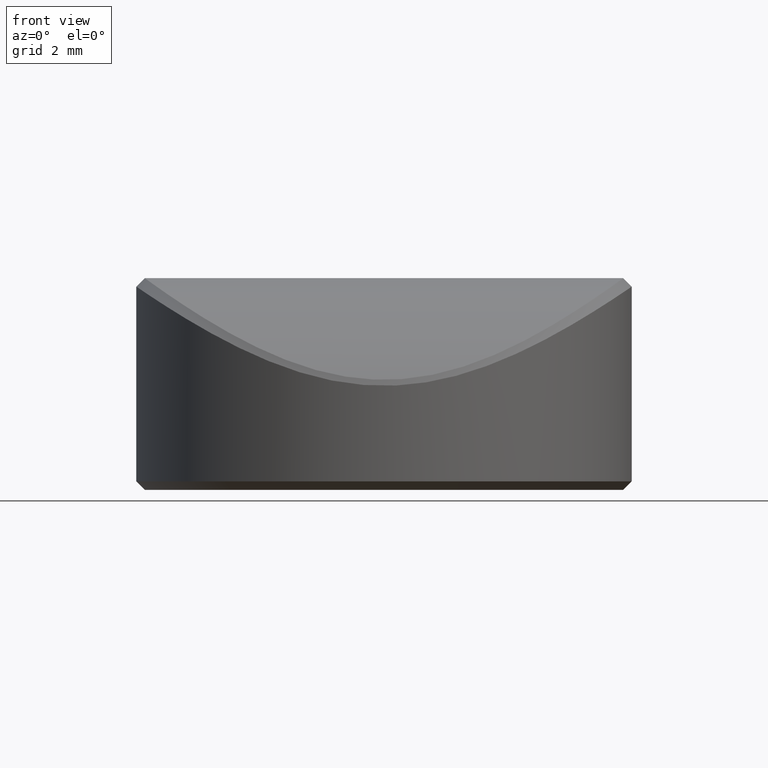
[diagram: clean part render]
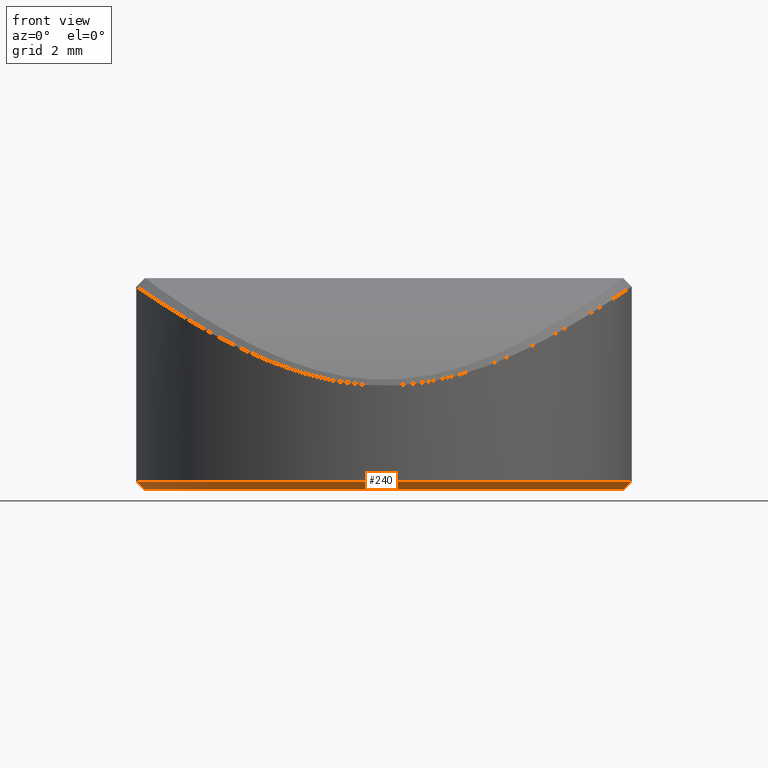
[diagram: same view with one face highlighted and labeled with its STEP entity id]
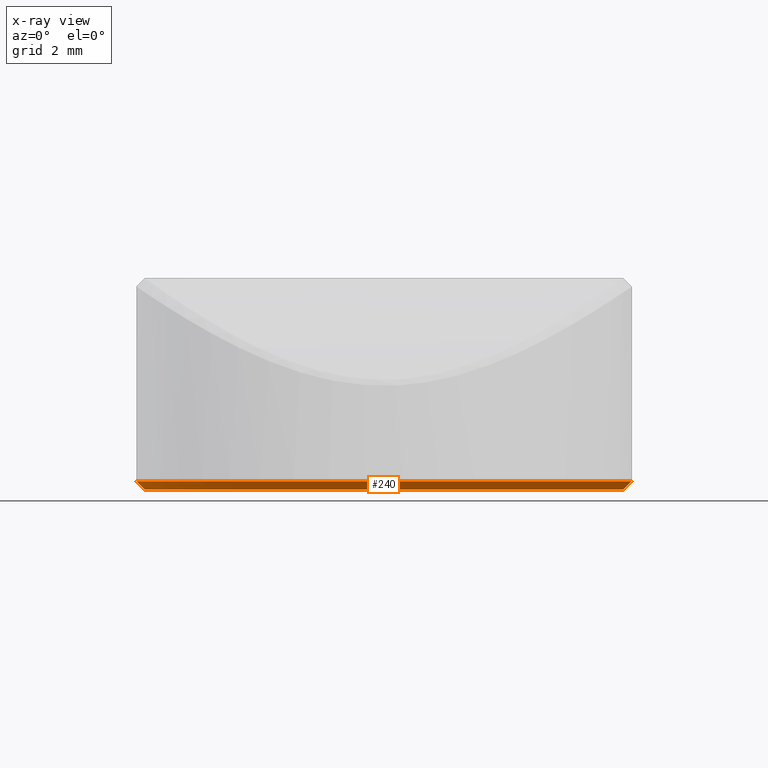
[diagram: x-ray of the same camera — body ghosted, the highlighted face saturated]
A machine part, front view. The second image highlights one B-rep face of the part: STEP entity #240.
The next image is the same camera in x-ray: the body ghosted, the highlighted face saturated — about 0% of this face is hidden behind the body in this view.
In plain terms, the highlighted conical surface has half-angle 45 deg.
Its self-contained STEP definition (entity closure, byte-faithful):
#42 = DIRECTION ( 'NONE',  ( -0.7071067811865489050, 8.659560562354951347E-17, 0.7071067811865460184 ) ) ;
#71 = DIRECTION ( 'NONE',  ( 1.000000000000000000, 0.000000000000000000, 0.000000000000000000 ) ) ;
#143 = CIRCLE ( 'NONE', #2180, 5.650000000000000355 ) ;
#204 = VERTEX_POINT ( 'NONE', #593 ) ;
#235 = DIRECTION ( 'NONE',  ( 1.000000000000000000, 0.000000000000000000, 0.000000000000000000 ) ) ;
#240 = ADVANCED_FACE ( 'NONE', ( #1721 ), #332, .T. ) ;
#332 = CONICAL_SURFACE ( 'NONE', #1255, 5.849999999999999645, 0.7853981633974503884 ) ;
#406 = CARTESIAN_POINT ( 'NONE',  ( 0.000000000000000000, 0.000000000000000000, 0.1999999999999979294 ) ) ;
#417 = EDGE_CURVE ( 'NONE', #1089, #1996, #833, .T. ) ;
#567 = AXIS2_PLACEMENT_3D ( 'NONE', #406, #582, #2069 ) ;
#582 = DIRECTION ( 'NONE',  ( -0.000000000000000000, -0.000000000000000000, 1.000000000000000000 ) ) ;
#593 = CARTESIAN_POINT ( 'NONE',  ( -5.650000000000000355, 7.041719095097280880E-16, 0.000000000000000000 ) ) ;
#628 = DIRECTION ( 'NONE',  ( -0.000000000000000000, -0.000000000000000000, 1.000000000000000000 ) ) ;
#670 = EDGE_CURVE ( 'NONE', #204, #1089, #1677, .T. ) ;
#723 = ORIENTED_EDGE ( 'NONE', *, *, #670, .F. ) ;
#833 = CIRCLE ( 'NONE', #567, 5.849999999999999645 ) ;
#872 = VECTOR ( 'NONE', #42, 1000.000000000000114 ) ;
#909 = ORIENTED_EDGE ( 'NONE', *, *, #417, .F. ) ;
#1089 = VERTEX_POINT ( 'NONE', #2044 ) ;
#1096 = CARTESIAN_POINT ( 'NONE',  ( 0.000000000000000000, 0.000000000000000000, 0.000000000000000000 ) ) ;
#1243 = DIRECTION ( 'NONE',  ( 0.7071067811865489050, 0.000000000000000000, 0.7071067811865460184 ) ) ;
#1255 = AXIS2_PLACEMENT_3D ( 'NONE', #1335, #628, #71 ) ;
#1257 = CARTESIAN_POINT ( 'NONE',  ( 5.849999999999999645, 0.000000000000000000, 0.1999999999999979294 ) ) ;
#1263 = VERTEX_POINT ( 'NONE', #1551 ) ;
#1335 = CARTESIAN_POINT ( 'NONE',  ( 0.000000000000000000, 0.000000000000000000, 0.1999999999999979294 ) ) ;
#1431 = EDGE_LOOP ( 'NONE', ( #723, #1649, #1467, #909 ) ) ;
#1467 = ORIENTED_EDGE ( 'NONE', *, *, #2124, .T. ) ;
#1551 = CARTESIAN_POINT ( 'NONE',  ( 5.650000000000000355, 0.000000000000000000, 0.000000000000000000 ) ) ;
#1610 = CARTESIAN_POINT ( 'NONE',  ( 5.849999999999999645, 7.164183775012015436E-16, 0.1999999999999979294 ) ) ;
#1649 = ORIENTED_EDGE ( 'NONE', *, *, #1813, .F. ) ;
#1677 = LINE ( 'NONE', #2051, #872 ) ;
#1680 = DIRECTION ( 'NONE',  ( -0.000000000000000000, -0.000000000000000000, -1.000000000000000000 ) ) ;
#1721 = FACE_OUTER_BOUND ( 'NONE', #1431, .T. ) ;
#1757 = VECTOR ( 'NONE', #1243, 1000.000000000000114 ) ;
#1813 = EDGE_CURVE ( 'NONE', #1263, #204, #143, .T. ) ;
#1996 = VERTEX_POINT ( 'NONE', #1610 ) ;
#2044 = CARTESIAN_POINT ( 'NONE',  ( -5.849999999999999645, 0.000000000000000000, 0.1999999999999979294 ) ) ;
#2051 = CARTESIAN_POINT ( 'NONE',  ( -5.849999999999999645, 7.164183775012015436E-16, 0.1999999999999979294 ) ) ;
#2069 = DIRECTION ( 'NONE',  ( 1.000000000000000000, 0.000000000000000000, 0.000000000000000000 ) ) ;
#2124 = EDGE_CURVE ( 'NONE', #1263, #1996, #2372, .T. ) ;
#2180 = AXIS2_PLACEMENT_3D ( 'NONE', #1096, #1680, #235 ) ;
#2372 = LINE ( 'NONE', #1257, #1757 ) ;